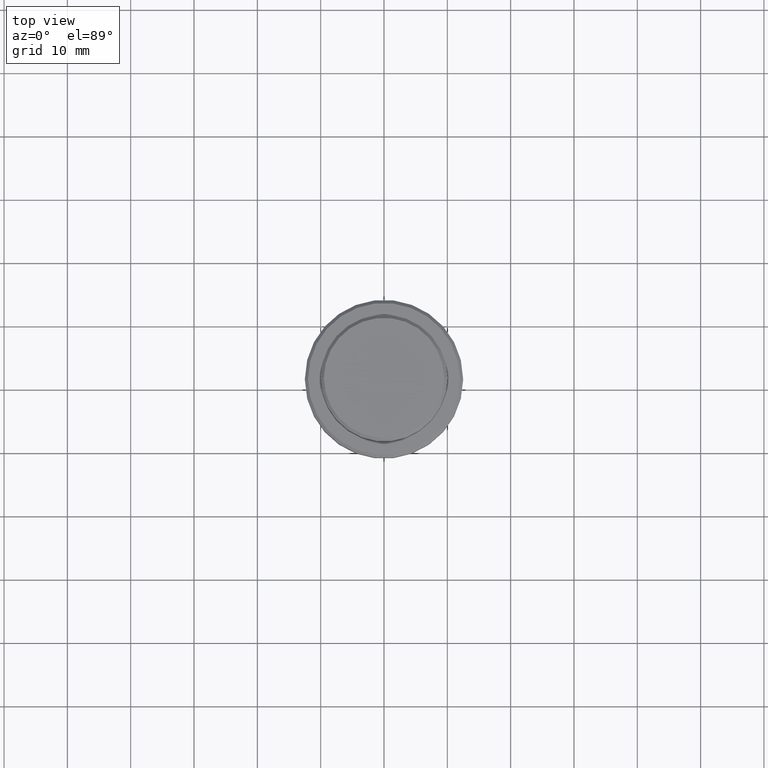
[diagram: clean part render]
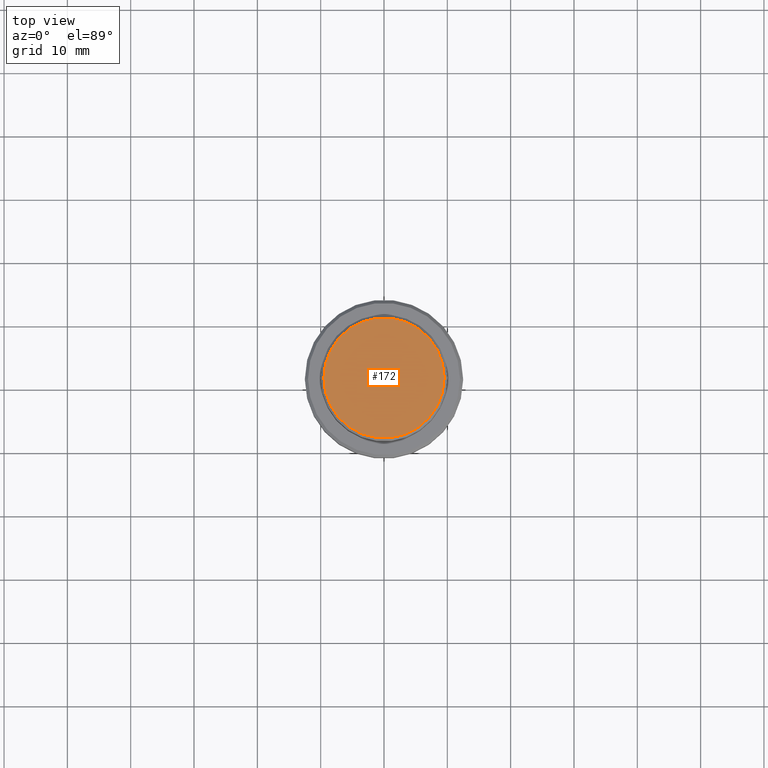
[diagram: same view with one face highlighted and labeled with its STEP entity id]
A machine part, top view. The second image highlights one B-rep face of the part: STEP entity #172.
In plain terms, the highlighted planar face has unit normal (0, -0, 1).
Its self-contained STEP definition (entity closure, byte-faithful):
#144 = ORIENTED_EDGE ( 'NONE', *, *, #1010, .T. ) ;
#168 = VERTEX_POINT ( 'NONE', #1260 ) ;
#172 = ADVANCED_FACE ( 'NONE', ( #926 ), #405, .T. ) ;
#223 = DIRECTION ( 'NONE',  ( 1.000000000000000000, 0.000000000000000000, 0.000000000000000000 ) ) ;
#316 = AXIS2_PLACEMENT_3D ( 'NONE', #331, #621, #223 ) ;
#331 = CARTESIAN_POINT ( 'NONE',  ( 0.000000000000000000, 0.000000000000000000, 0.000000000000000000 ) ) ;
#352 = VERTEX_POINT ( 'NONE', #984 ) ;
#365 = AXIS2_PLACEMENT_3D ( 'NONE', #476, #384, #1255 ) ;
#381 = DIRECTION ( 'NONE',  ( 0.000000000000000000, -0.000000000000000000, 1.000000000000000000 ) ) ;
#384 = DIRECTION ( 'NONE',  ( -0.000000000000000000, -0.000000000000000000, 1.000000000000000000 ) ) ;
#405 = PLANE ( 'NONE',  #933 ) ;
#412 = EDGE_CURVE ( 'NONE', #352, #168, #831, .T. ) ;
#453 = ORIENTED_EDGE ( 'NONE', *, *, #412, .T. ) ;
#476 = CARTESIAN_POINT ( 'NONE',  ( 0.000000000000000000, 0.000000000000000000, 0.000000000000000000 ) ) ;
#506 = DIRECTION ( 'NONE',  ( 1.000000000000000000, 0.000000000000000000, 0.000000000000000000 ) ) ;
#621 = DIRECTION ( 'NONE',  ( -0.000000000000000000, -0.000000000000000000, 1.000000000000000000 ) ) ;
#691 = CIRCLE ( 'NONE', #365, 9.500000000000008882 ) ;
#770 = EDGE_LOOP ( 'NONE', ( #144, #453 ) ) ;
#831 = CIRCLE ( 'NONE', #316, 9.500000000000008882 ) ;
#926 = FACE_OUTER_BOUND ( 'NONE', #770, .T. ) ;
#933 = AXIS2_PLACEMENT_3D ( 'NONE', #1155, #381, #506 ) ;
#984 = CARTESIAN_POINT ( 'NONE',  ( 9.500000000000008882, 1.194030629168669864E-15, 0.000000000000000000 ) ) ;
#1010 = EDGE_CURVE ( 'NONE', #168, #352, #691, .T. ) ;
#1155 = CARTESIAN_POINT ( 'NONE',  ( 0.000000000000000000, 0.000000000000000000, 0.000000000000000000 ) ) ;
#1255 = DIRECTION ( 'NONE',  ( 1.000000000000000000, 0.000000000000000000, 0.000000000000000000 ) ) ;
#1260 = CARTESIAN_POINT ( 'NONE',  ( -9.500000000000008882, 0.000000000000000000, 0.000000000000000000 ) ) ;